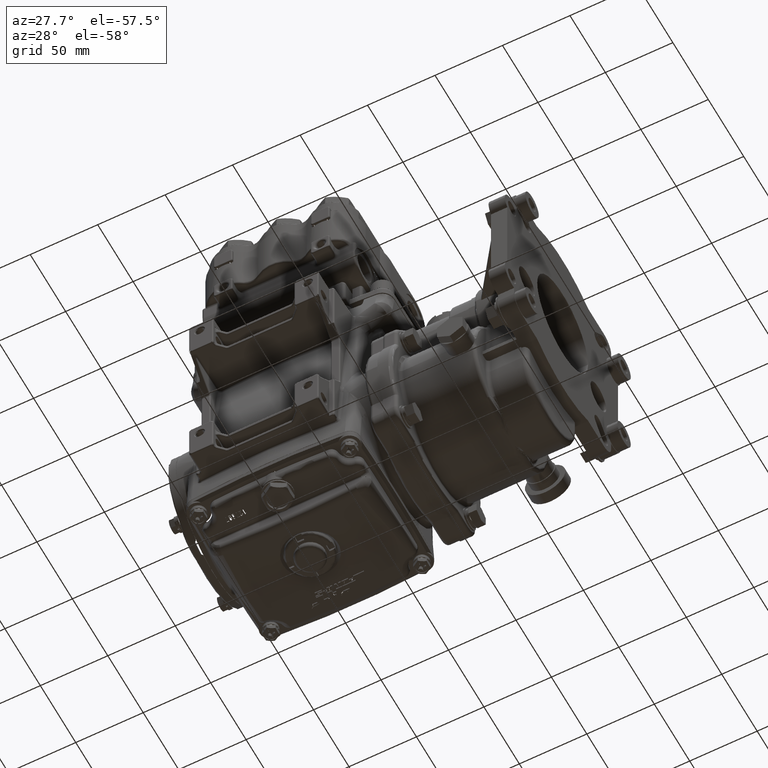
[diagram: clean part render]
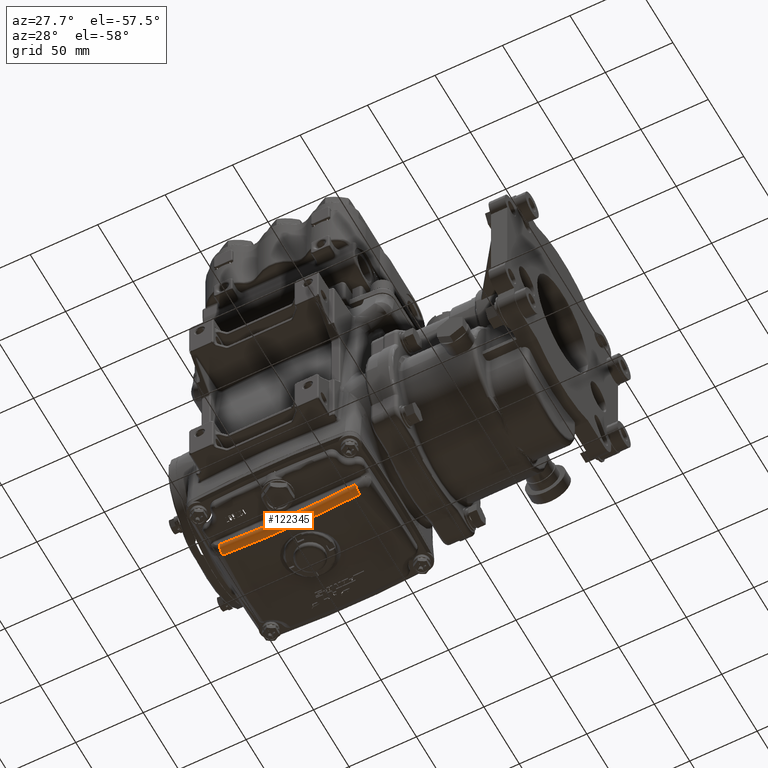
[diagram: same view with one face highlighted and labeled with its STEP entity id]
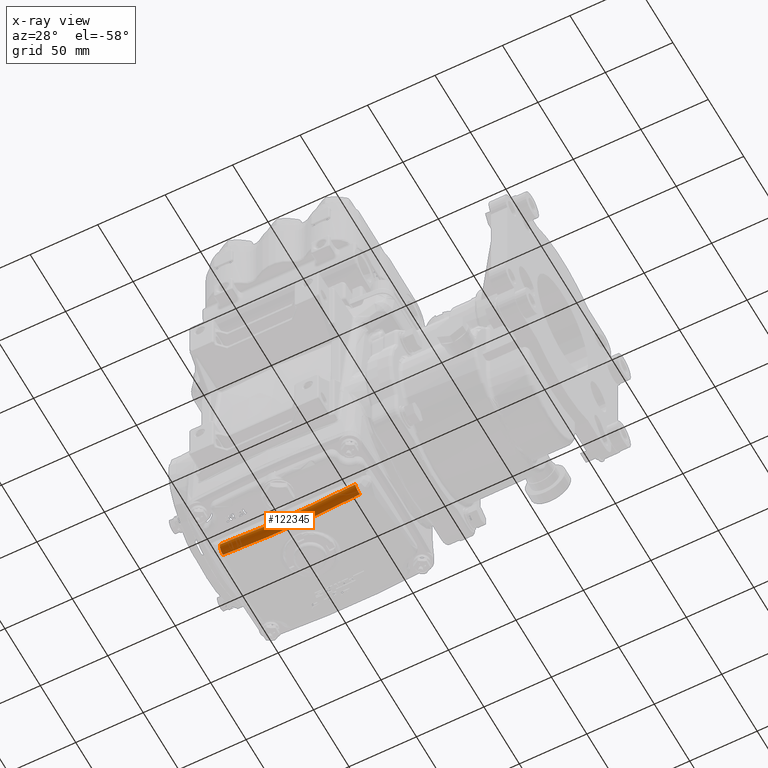
[diagram: x-ray of the same camera — body ghosted, the highlighted face saturated]
A machine part, auxiliary view. The second image highlights one B-rep face of the part: STEP entity #122345.
The next image is the same camera in x-ray: the body ghosted, the highlighted face saturated — about 0% of this face is hidden behind the body in this view.
In plain terms, the highlighted toroidal blend (fillet) surface has major radius 494.565 mm and minor (blend) radius 5 mm.
Its self-contained STEP definition (entity closure, byte-faithful):
#1109 = AXIS2_PLACEMENT_3D ( 'NONE', #35079, #53615, #100679 ) ;
#5466 = CIRCLE ( 'NONE', #114094, 0.1968503937007871629 ) ;
#11730 = DIRECTION ( 'NONE',  ( 1.000000000000000000, 0.000000000000000000, 0.000000000000000000 ) ) ;
#18435 = CARTESIAN_POINT ( 'NONE',  ( -1.977110063958240405, -1.259842519685039353, -3.031846117286614906 ) ) ;
#18848 = CIRCLE ( 'NONE', #66283, 19.66710084342715703 ) ;
#23265 = CARTESIAN_POINT ( 'NONE',  ( 1.977110063958240405, -1.062992125984252745, -3.031846117286617126 ) ) ;
#23871 = EDGE_CURVE ( 'NONE', #94800, #28053, #121679, .T. ) ;
#24914 = CARTESIAN_POINT ( 'NONE',  ( 1.996984731275934122, -1.045073800574857437, -3.226869221167618651 ) ) ;
#25260 = VERTEX_POINT ( 'NONE', #24914 ) ;
#28053 = VERTEX_POINT ( 'NONE', #18435 ) ;
#35079 = CARTESIAN_POINT ( 'NONE',  ( -1.977110063958240405, -1.062992125984252745, -3.031846117286617126 ) ) ;
#36880 = ORIENTED_EDGE ( 'NONE', *, *, #23871, .F. ) ;
#38855 = TOROIDAL_SURFACE ( 'NONE', #78458, 19.47106766168560554, 0.1968503937007874127 ) ;
#40627 = CIRCLE ( 'NONE', #95993, 19.47106766168560554 ) ;
#42014 = CARTESIAN_POINT ( 'NONE',  ( 0.000000000000000000, -1.062992125984252745, 16.33858267716535551 ) ) ;
#42633 = FACE_OUTER_BOUND ( 'NONE', #87937, .T. ) ;
#43555 = CARTESIAN_POINT ( 'NONE',  ( 1.977110063958240405, -1.259842519685039353, -3.031846117286614906 ) ) ;
#49740 = CARTESIAN_POINT ( 'NONE',  ( 0.000000000000000000, -1.259842519685039353, 16.33858267716535551 ) ) ;
#52322 = CARTESIAN_POINT ( 'NONE',  ( 0.000000000000000000, -1.045073723253141296, 16.33858267716535551 ) ) ;
#53615 = DIRECTION ( 'NONE',  ( -0.9948313636939557503, -0.000000000000000000, 0.1015409169292097735 ) ) ;
#57800 = CARTESIAN_POINT ( 'NONE',  ( -1.996984731275934122, -1.045073800574857437, -3.226869221167618651 ) ) ;
#58645 = ORIENTED_EDGE ( 'NONE', *, *, #59988, .F. ) ;
#59988 = EDGE_CURVE ( 'NONE', #25260, #94800, #18848, .T. ) ;
#60985 = DIRECTION ( 'NONE',  ( -0.9948313636939557503, 0.000000000000000000, -0.1015409169292097735 ) ) ;
#61169 = DIRECTION ( 'NONE',  ( 0.000000000000000000, 1.000000000000000000, 0.000000000000000000 ) ) ;
#62224 = DIRECTION ( 'NONE',  ( 0.000000000000000000, 1.000000000000000000, -0.000000000000000000 ) ) ;
#66283 = AXIS2_PLACEMENT_3D ( 'NONE', #52322, #62224, #97538 ) ;
#68953 = DIRECTION ( 'NONE',  ( 1.000000000000000000, 0.000000000000000000, -5.275390458629019537E-15 ) ) ;
#78458 = AXIS2_PLACEMENT_3D ( 'NONE', #42014, #61169, #11730 ) ;
#87937 = EDGE_LOOP ( 'NONE', ( #115578, #36880, #58645, #94016 ) ) ;
#93550 = EDGE_CURVE ( 'NONE', #25260, #115699, #5466, .T. ) ;
#94016 = ORIENTED_EDGE ( 'NONE', *, *, #93550, .T. ) ;
#94800 = VERTEX_POINT ( 'NONE', #57800 ) ;
#95993 = AXIS2_PLACEMENT_3D ( 'NONE', #49740, #114155, #68953 ) ;
#96930 = DIRECTION ( 'NONE',  ( -0.1015409169292104258, 0.000000000000000000, 0.9948313636939555282 ) ) ;
#97538 = DIRECTION ( 'NONE',  ( -1.000000000000000000, 0.000000000000000000, 5.333931207850942581E-15 ) ) ;
#100679 = DIRECTION ( 'NONE',  ( 0.1015409169292104258, 0.000000000000000000, 0.9948313636939555282 ) ) ;
#114094 = AXIS2_PLACEMENT_3D ( 'NONE', #23265, #60985, #96930 ) ;
#114155 = DIRECTION ( 'NONE',  ( -0.000000000000000000, -1.000000000000000000, -0.000000000000000000 ) ) ;
#115578 = ORIENTED_EDGE ( 'NONE', *, *, #121504, .F. ) ;
#115699 = VERTEX_POINT ( 'NONE', #43555 ) ;
#121504 = EDGE_CURVE ( 'NONE', #28053, #115699, #40627, .T. ) ;
#121679 = CIRCLE ( 'NONE', #1109, 0.1968503937007871629 ) ;
#122345 = ADVANCED_FACE ( 'NONE', ( #42633 ), #38855, .T. ) ;